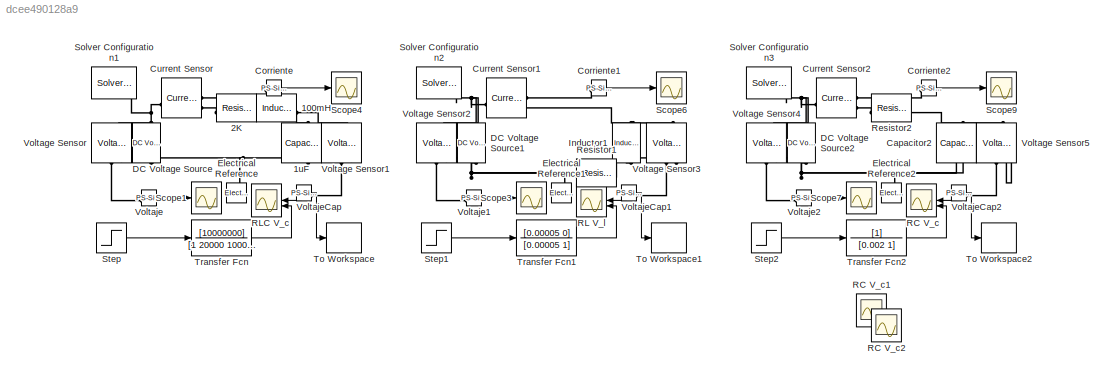
MODEL slx_dcee490128a9
KIND model
CONFIG AbsTol = 1e-3
CONFIG EnableMultiTasking = off
CONFIG FixedStep = auto
CONFIG MaxStep = auto
CONFIG MinStep = auto
CONFIG RelTol = 1e-3
CONFIG SampleTimeConstraint = Unconstrained
CONFIG SolverName = VariableStepAuto
CONFIG StartTime = 0.0
CONFIG StopTime = 100
BLOCK [Reference] 100mH  REF=fl_lib/Electrical/Electrical Elements/Inductor
  SourceBlock = fl_lib/Electrical/Electrical Elements/Inductor
  SourceType = Inductor
BLOCK [Reference] 1uF  REF=fl_lib/Electrical/Electrical Elements/Capacitor
  NameLocation = left
  SourceBlock = fl_lib/Electrical/Electrical Elements/Capacitor
  SourceType = Capacitor
BLOCK [Reference] 2K  REF=fl_lib/Electrical/Electrical Elements/Resistor
  SourceBlock = fl_lib/Electrical/Electrical Elements/Resistor
  SourceType = Resistor
BLOCK [Reference] Capacitor2  REF=fl_lib/Electrical/Electrical Elements/Capacitor
  NameLocation = left
  SourceBlock = fl_lib/Electrical/Electrical Elements/Capacitor
  SourceType = Capacitor
BLOCK [Reference] Corriente  REF=nesl_utility/PS-Simulink
Converter
  SourceBlock = nesl_utility/PS-Simulink\nConverter
  SourceType = PS-Simulink\nConverter
BLOCK [Reference] Corriente1  REF=nesl_utility/PS-Simulink
Converter
  SourceBlock = nesl_utility/PS-Simulink\nConverter
  SourceType = PS-Simulink\nConverter
BLOCK [Reference] Corriente2  REF=nesl_utility/PS-Simulink
Converter
  SourceBlock = nesl_utility/PS-Simulink\nConverter
  SourceType = PS-Simulink\nConverter
BLOCK [Reference] Current Sensor  REF=fl_lib/Electrical/Electrical Sensors/Current Sensor
  SourceBlock = fl_lib/Electrical/Electrical Sensors/Current Sensor
  SourceType = Current Sensor
BLOCK [Reference] Current Sensor1  REF=fl_lib/Electrical/Electrical Sensors/Current Sensor
  SourceBlock = fl_lib/Electrical/Electrical Sensors/Current Sensor
  SourceType = Current Sensor
BLOCK [Reference] Current Sensor2  REF=fl_lib/Electrical/Electrical Sensors/Current Sensor
  SourceBlock = fl_lib/Electrical/Electrical Sensors/Current Sensor
  SourceType = Current Sensor
BLOCK [Reference] DC Voltage Source  REF=fl_lib/Electrical/Electrical Sources/DC Voltage Source
  NameLocation = right
  SourceBlock = fl_lib/Electrical/Electrical Sources/DC Voltage Source
  SourceType = DC Voltage Source
BLOCK [Reference] DC Voltage Source1  REF=fl_lib/Electrical/Electrical Sources/DC Voltage Source
  NameLocation = right
  SourceBlock = fl_lib/Electrical/Electrical Sources/DC Voltage Source
  SourceType = DC Voltage Source
BLOCK [Reference] DC Voltage Source2  REF=fl_lib/Electrical/Electrical Sources/DC Voltage Source
  NameLocation = right
  SourceBlock = fl_lib/Electrical/Electrical Sources/DC Voltage Source
  SourceType = DC Voltage Source
BLOCK [Reference] Electrical Reference  REF=fl_lib/Electrical/Electrical Elements/Electrical Reference
  NameLocation = right
  SourceBlock = fl_lib/Electrical/Electrical Elements/Electrical Reference
  SourceType = Electrical Reference
BLOCK [Reference] Electrical Reference1  REF=fl_lib/Electrical/Electrical Elements/Electrical Reference
  NameLocation = right
  SourceBlock = fl_lib/Electrical/Electrical Elements/Electrical Reference
  SourceType = Electrical Reference
BLOCK [Reference] Electrical Reference2  REF=fl_lib/Electrical/Electrical Elements/Electrical Reference
  NameLocation = right
  SourceBlock = fl_lib/Electrical/Electrical Elements/Electrical Reference
  SourceType = Electrical Reference
BLOCK [Reference] Inductor1  REF=fl_lib/Electrical/Electrical Elements/Inductor
  NameLocation = left
  SourceBlock = fl_lib/Electrical/Electrical Elements/Inductor
  SourceType = Inductor
BLOCK [Scope] RC V_c
  ActiveDisplayYMaximum = 4.9731070631350631
  ActiveDisplayYMinimum = -0.060650049082751956
  ContainerLayout = {"WindowBounds":[1,1529,1395,600],"gridDimensions":{"w":1,"h":1},"tileCount":1,"tileCoverage":1,"columnWeights":1,"rowWeights":1,"tileOccupancy":{"children":[{"id":"/Scope8"},{"id":"/Scope5"}]}}  <repeated x4 — deduplicated; at blocks: RC V_c, RC V_c1, RC V_c2, RL V_l>
  DataLoggingVariableName = ScopeData6
  Floating = off
  GraphicalSettings = {"Style":{"BackgroundColor":[0.12941176470588237,0.12941176470588237,0.12941176470588237],"AxesColor":[0.07058823529411765,0.07058823529411765,0.07058823529411765],"LabelsColor":[0.8509803921568627,0.8509803921568627,0.8509803921568627],"PreserveColors":false,"Visible":[true,true],"LineStyle":["-",":"],"LineWidth":[3,3],"BarWidth":[0.9,0.9],"LineColor":["auto","auto"],"LineFaceAlpha":[1,1],"LineEd...<+2251ch>
  MultipleDisplayCache = [{"MaxYLimMag":5.6308250579011947,"MaxYLimReal":4.9731070631350631,"MinYLimMag":0,"MinYLimReal":-0.060650049082751956,"PlotAsMagnitudePhase":false,"ShowGrid":true,"ShowLegend":true,"Title":"Funcion de transferencia vs Salida del circuito","YLabel":"Voltaje"}]  <repeated x3 — deduplicated; at blocks: RC V_c, RC V_c2, RLC V_c>
  NumInputPorts = 2
  OpenAtSimulationStart = on
  ScopeFrameLocation = container
  ShowLegend = on
  ShowTimeAxisLabel = on
  Title = Funcion de transferencia vs Salida del circuito
  Visible = on
  WasSavedAsWebScope = on
  WindowPosition = [0 36 1536 793]
  YLabel = Voltaje
BLOCK [Scope] RC V_c1
  ActiveDisplayYMaximum = 7.3529253989415817E-7
  ActiveDisplayYMinimum = -3.53916868983982E-7
  DataLoggingVariableName = ScopeData8
  DisplayFullPath = on
  Floating = off
  GraphicalSettings = {"AxesScalingProperties":{"AlignXAxis":"Center","AlignYAxis":"Center","AutoScaleXAxisLimits":false,"AxesScaling":"Manual","AxesScalingNumUpdates":10,"ExpandOnly":true,"ScaleAxesLimitsAtStop":false,"XAxisDataRange":100,"YAxisDataRange":80},"DisplayProperties":{"ColorOrder":["auto","auto","auto","auto","auto","auto","auto","auto","auto","auto","auto","auto","auto","auto","auto","auto","auto","auto",...<+2250ch>
  MultipleDisplayCache = [{"MaxYLimMag":5.6308250579011947,"MaxYLimReal":7.3529253989415817E-7,"MinYLimMag":0,"MinYLimReal":-3.53916868983982E-7,"PlotAsMagnitudePhase":false,"ShowGrid":true,"ShowLegend":true,"Title":"Funcion de transferencia vs Salida del circuito","YLabel":"Voltaje"}]
  NumInputPorts = 2
  OpenAtSimulationStart = on
  ScopeFrameLocation = container
  ShowLegend = on
  ShowTimeAxisLabel = on
  Title = Funcion de transferencia vs Salida del circuito
  Visible = on
  WasSavedAsWebScope = on
  WindowPosition = [0 36 1536 793]
  YLabel = Voltaje
BLOCK [Scope] RC V_c2
  ActiveDisplayYMaximum = 4.9731070631350631
  ActiveDisplayYMinimum = -0.060650049082751956
  DataLoggingVariableName = ScopeData9
  Floating = off
  GraphicalSettings = {"Style":{"BackgroundColor":[0.12941176470588237,0.12941176470588237,0.12941176470588237],"AxesColor":[0.07058823529411765,0.07058823529411765,0.07058823529411765],"LabelsColor":[0.8509803921568627,0.8509803921568627,0.8509803921568627],"PreserveColors":false,"Visible":[true,true],"LineStyle":["-",":"],"LineWidth":[3,3],"BarWidth":[0.9,0.9],"LineColor":["auto","auto"],"LineFaceAlpha":[1,1],"LineEd...<+2239ch>
  NumInputPorts = 2
  OpenAtSimulationStart = on
  ScopeFrameLocation = container
  ShowLegend = on
  ShowTimeAxisLabel = on
  Title = Funcion de transferencia vs Salida del circuito
  Visible = on
  WasSavedAsWebScope = on
  WindowPosition = [0 36 1536 793]
  YLabel = Voltaje
BLOCK [Scope] RL V_l
  ActiveDisplayYMaximum = 7.4489023708659783
  ActiveDisplayYMinimum = -0.65199075700163123
  DataLoggingVariableName = ScopeData3
  Floating = off
  GraphicalSettings = {"Style":{"BackgroundColor":[0.12941176470588237,0.12941176470588237,0.12941176470588237],"AxesColor":[0.07058823529411765,0.07058823529411765,0.07058823529411765],"LabelsColor":[0.8509803921568627,0.8509803921568627,0.8509803921568627],"PreserveColors":false,"Visible":[true,false],"LineStyle":["-",":"],"LineWidth":[3,3],"BarWidth":[0.9,0.9],"LineColor":["auto","auto"],"LineFaceAlpha":[1,1],"LineE...<+2545ch>
  MultipleDisplayCache = [{"MaxYLimMag":5.625122285105399,"MaxYLimReal":7.4489023708659783,"MinYLimMag":0,"MinYLimReal":-0.65199075700163123,"PlotAsMagnitudePhase":false,"ShowGrid":true,"ShowLegend":true,"Title":"Funcion de transferencia vs Salida del circuito","YLabel":"Voltaje"}]
  NumInputPorts = 2
  OpenAtSimulationStart = on
  ScopeFrameLocation = container
  ShowLegend = on
  ShowTimeAxisLabel = on
  Title = Funcion de transferencia vs Salida del circuito
  Visible = on
  WasSavedAsWebScope = on
  WindowPosition = [1 49 1536 793]
  YLabel = Voltaje
BLOCK [Scope] RLC V_c
  ActiveDisplayYMaximum = 4.9731070631350631
  ActiveDisplayYMinimum = -0.060650049082751956
  ContainerLayout = {"WindowBounds":[1,1529,1395,600],"gridDimensions":{"w":1,"h":1},"tileCount":1,"tileCoverage":1,"columnWeights":1,"rowWeights":1,"tileOccupancy":{"children":[{"id":"/Scope8"},{"id":"/Scope2"},{"id":"/Scope5"},{"id":"/Scope4"},{"id":"/Scope6"},{"id":"/Scope9"}]}}  <repeated x4 — deduplicated; at blocks: RLC V_c, Scope4, Scope6, Scope9>
  DataLoggingVariableName = ScopeData2
  Floating = off
  GraphicalSettings = {"Style":{"BackgroundColor":[0.12941176470588237,0.12941176470588237,0.12941176470588237],"AxesColor":[0.07058823529411765,0.07058823529411765,0.07058823529411765],"LabelsColor":[0.8509803921568627,0.8509803921568627,0.8509803921568627],"PreserveColors":false,"Visible":[true,true],"LineStyle":["-",":"],"LineWidth":[3,3],"BarWidth":[0.9,0.9],"LineColor":["auto","auto"],"LineFaceAlpha":[1,1],"LineEd...<+2249ch>
  LayoutDimensionsString = [1,1]
  NumInputPorts = 2
  OpenAtSimulationStart = on
  ScopeFrameLocation = container
  ShowLegend = on
  ShowTimeAxisLabel = on
  Title = Funcion de transferencia vs Salida del circuito
  Visible = on
  WasSavedAsWebScope = on
  WindowPosition = [1 49 1536 793]
  YLabel = Voltaje
BLOCK [Reference] Resistor1  REF=fl_lib/Electrical/Electrical Elements/Resistor
  SourceBlock = fl_lib/Electrical/Electrical Elements/Resistor
  SourceType = Resistor
BLOCK [Reference] Resistor2  REF=fl_lib/Electrical/Electrical Elements/Resistor
  SourceBlock = fl_lib/Electrical/Electrical Elements/Resistor
  SourceType = Resistor
BLOCK [Scope] Scope1
  ActiveDisplayYMaximum = 6
  ActiveDisplayYMinimum = 4
  ContainerLayout = {"WindowBounds":[1,1529,1395,600]}
  DataLoggingVariableName = ScopeData1
  Floating = off
  GraphicalSettings = {"Style":{"BackgroundColor":[0.12941176470588237,0.12941176470588237,0.12941176470588237],"AxesColor":[0.07058823529411765,0.07058823529411765,0.07058823529411765],"LabelsColor":[0.8509803921568627,0.8509803921568627,0.8509803921568627],"PreserveColors":false,"Visible":[true],"LineStyle":["-"],"LineWidth":[1.5],"BarWidth":[0.9],"LineColor":["auto"],"LineFaceAlpha":[1],"LineEdgeAlpha":[1],"Marker":...<+1941ch>  <repeated x3 — deduplicated; at blocks: Scope1, Scope3, Scope7>
  MultipleDisplayCache = [{"MaxYLimMag":6,"MaxYLimReal":6,"MinYLimMag":4,"MinYLimReal":4,"PlotAsMagnitudePhase":false,"ShowGrid":true,"ShowLegend":true,"Title":"Grafica de voltaje.","YLabel":"Voltaje"}]  <repeated x3 — deduplicated; at blocks: Scope1, Scope3, Scope7>
  NumInputPorts = 1
  ShowLegend = on
  ShowTimeAxisLabel = on
  TimeAxisLabels = All
  Title = Grafica de voltaje.
  WasSavedAsWebScope = on
  WindowPosition = [680 330 560 447]
  YLabel = Voltaje
BLOCK [Scope] Scope3
  ActiveDisplayYMaximum = 6
  ActiveDisplayYMinimum = 4
  ContainerLayout = {"WindowBounds":[2,1533,339,596],"gridDimensions":{"w":1,"h":1},"tileCount":1,"tileCoverage":1,"columnWeights":1,"rowWeights":1,"tileOccupancy":{"children":[{"id":"/Scope4"},{"id":"/Scope1"},{"id":"/Scope2"}]}}
  Floating = off
  NumInputPorts = 1
  ShowLegend = on
  ShowTimeAxisLabel = on
  TimeAxisLabels = All
  Title = Grafica de voltaje.
  WasSavedAsWebScope = on
  WindowPosition = [680 330 560 447]
  YLabel = Voltaje
BLOCK [Scope] Scope4
  ActiveDisplayYMaximum = 0.0034772686897663217
  ActiveDisplayYMinimum = -0.0019993928048791867
  DataLoggingVariableName = ScopeData1
  DisplayFullPath = on
  Floating = off
  GraphicalSettings = {"Style":{"BackgroundColor":[0.12941176470588237,0.12941176470588237,0.12941176470588237],"AxesColor":[0.07058823529411765,0.07058823529411765,0.07058823529411765],"LabelsColor":[0.8509803921568627,0.8509803921568627,0.8509803921568627],"PreserveColors":false,"Visible":[true],"LineStyle":["-"],"LineWidth":[1.5],"BarWidth":[0.9],"LineColor":["auto"],"LineFaceAlpha":[1],"LineEdgeAlpha":[1],"Marker":...<+2013ch>
  MaximizeAxes = Auto
  MultipleDisplayCache = [{"MaxYLimMag":10,"MaxYLimReal":0.0034772686897663217,"MinYLimMag":0,"MinYLimReal":-0.0019993928048791867,"PlotAsMagnitudePhase":false,"ShowGrid":true,"ShowLegend":true,"Title":"Grafica de corriente","YLabel":"Intensidad"}]
  NumInputPorts = 1
  ScopeFrameLocation = window
  ShowLegend = on
  ShowTimeAxisLabel = on
  Title = Grafica de corriente
  WasSavedAsWebScope = on
  WindowPosition = [448.000000,113.000000,958.000000,457.000000,]
  YLabel = Intensidad
BLOCK [Scope] Scope6
  ActiveDisplayYMaximum = 0.0034772686897663217
  ActiveDisplayYMinimum = -0.0019993928048791867
  DataLoggingVariableName = ScopeData4
  DisplayFullPath = on
  Floating = off
  GraphicalSettings = {"Style":{"BackgroundColor":[0.12941176470588237,0.12941176470588237,0.12941176470588237],"AxesColor":[0.07058823529411765,0.07058823529411765,0.07058823529411765],"LabelsColor":[0.8509803921568627,0.8509803921568627,0.8509803921568627],"PreserveColors":false,"Visible":[true],"LineStyle":["-"],"LineWidth":[1.5],"BarWidth":[0.9],"LineColor":["auto"],"LineFaceAlpha":[1],"LineEdgeAlpha":[1],"Marker":...<+2015ch>
  MaximizeAxes = Auto
  MultipleDisplayCache = [{"MaxYLimMag":10,"MaxYLimReal":0.0034772686897663217,"MinYLimMag":0,"MinYLimReal":-0.0019993928048791867,"PlotAsMagnitudePhase":false,"ShowGrid":true,"ShowLegend":true,"Title":"Grafica de corriente","YLabel":"Intensidad"}]
  NumInputPorts = 1
  ScopeFrameLocation = window
  ShowLegend = on
  ShowTimeAxisLabel = on
  Title = Grafica de corriente
  WasSavedAsWebScope = on
  WindowPosition = [479.000000,90.000000,958.000000,457.000000,]
  YLabel = Intensidad
BLOCK [Scope] Scope7
  ActiveDisplayYMaximum = 6
  ActiveDisplayYMinimum = 4
  ContainerLayout = {"WindowBounds":[2,1533,339,596],"gridDimensions":{"w":1,"h":1},"tileCount":1,"tileCoverage":1,"columnWeights":1,"rowWeights":1,"tileOccupancy":{"children":[{"id":"/Scope4"},{"id":"/Scope1"},{"id":"/Scope2"}]}}
  DataLoggingVariableName = ScopeData5
  Floating = off
  NumInputPorts = 1
  ShowLegend = on
  ShowTimeAxisLabel = on
  TimeAxisLabels = All
  Title = Grafica de voltaje.
  WasSavedAsWebScope = on
  WindowPosition = [680 330 560 447]
  YLabel = Voltaje
BLOCK [Scope] Scope9
  ActiveDisplayYMaximum = 0.0028103954050093891
  ActiveDisplayYMinimum = -0.00029355865758450358
  DataLoggingVariableName = ScopeData7
  DisplayFullPath = on
  Floating = off
  GraphicalSettings = {"Style":{"BackgroundColor":[0.12941176470588237,0.12941176470588237,0.12941176470588237],"AxesColor":[0.07058823529411765,0.07058823529411765,0.07058823529411765],"LabelsColor":[0.8509803921568627,0.8509803921568627,0.8509803921568627],"PreserveColors":false,"Visible":[true],"LineStyle":["-"],"LineWidth":[1.5],"BarWidth":[0.9],"LineColor":["auto"],"LineFaceAlpha":[1],"LineEdgeAlpha":[1],"Marker":...<+2013ch>
  MaximizeAxes = Auto
  MultipleDisplayCache = [{"MaxYLimMag":10,"MaxYLimReal":0.0028103954050093891,"MinYLimMag":0,"MinYLimReal":-0.00029355865758450358,"PlotAsMagnitudePhase":false,"ShowGrid":true,"ShowLegend":true,"Title":"Grafica de corriente","YLabel":"Intensidad"}]
  NumInputPorts = 1
  ScopeFrameLocation = window
  ShowLegend = on
  ShowTimeAxisLabel = on
  Title = Grafica de corriente
  WasSavedAsWebScope = on
  WindowPosition = [1.000000,49.000000,1536.000000,793.000000,]
  YLabel = Intensidad
BLOCK [Reference] Solver Configuration1  REF=nesl_utility/Solver
Configuration
  SourceBlock = nesl_utility/Solver\nConfiguration
  SourceType = Solver\nConfiguration
BLOCK [Reference] Solver Configuration2  REF=nesl_utility/Solver
Configuration
  SourceBlock = nesl_utility/Solver\nConfiguration
  SourceType = Solver\nConfiguration
BLOCK [Reference] Solver Configuration3  REF=nesl_utility/Solver
Configuration
  SourceBlock = nesl_utility/Solver\nConfiguration
  SourceType = Solver\nConfiguration
BLOCK [Step] Step
  After = 5
  SampleTime = 0
  Time = 0
BLOCK [Step] Step1
  After = 5
  SampleTime = 0
  Time = 0
BLOCK [Step] Step2
  After = 5
  SampleTime = 0
  Time = 0
BLOCK [ToWorkspace] To Workspace
  FixptAsFi = on
  MaxDataPoints = inf
  SampleTime = -1
  SaveFormat = Timeseries
  VariableName = vcRLC
BLOCK [ToWorkspace] To Workspace1
  FixptAsFi = on
  MaxDataPoints = inf
  SampleTime = -1
  SaveFormat = Timeseries
  VariableName = vlRL
BLOCK [ToWorkspace] To Workspace2
  FixptAsFi = on
  MaxDataPoints = inf
  SampleTime = -1
  SaveFormat = Timeseries
  VariableName = vcRC
BLOCK [TransferFcn] Transfer Fcn
  Denominator = [1 20000 10000000]
  Numerator = [10000000]
BLOCK [TransferFcn] Transfer Fcn1
  Denominator = [0.00005 1]
  Numerator = [0.00005 0]
BLOCK [TransferFcn] Transfer Fcn2
  Denominator = [0.002 1]
BLOCK [Reference] Voltage Sensor  REF=fl_lib/Electrical/Electrical Sensors/Voltage Sensor
  NameLocation = right
  SourceBlock = fl_lib/Electrical/Electrical Sensors/Voltage Sensor
  SourceType = Voltage Sensor
BLOCK [Reference] Voltage Sensor1  REF=fl_lib/Electrical/Electrical Sensors/Voltage Sensor
  NameLocation = right
  SourceBlock = fl_lib/Electrical/Electrical Sensors/Voltage Sensor
  SourceType = Voltage Sensor
BLOCK [Reference] Voltage Sensor2  REF=fl_lib/Electrical/Electrical Sensors/Voltage Sensor
  NameLocation = right
  SourceBlock = fl_lib/Electrical/Electrical Sensors/Voltage Sensor
  SourceType = Voltage Sensor
BLOCK [Reference] Voltage Sensor3  REF=fl_lib/Electrical/Electrical Sensors/Voltage Sensor
  NameLocation = right
  SourceBlock = fl_lib/Electrical/Electrical Sensors/Voltage Sensor
  SourceType = Voltage Sensor
BLOCK [Reference] Voltage Sensor4  REF=fl_lib/Electrical/Electrical Sensors/Voltage Sensor
  NameLocation = right
  SourceBlock = fl_lib/Electrical/Electrical Sensors/Voltage Sensor
  SourceType = Voltage Sensor
BLOCK [Reference] Voltage Sensor5  REF=fl_lib/Electrical/Electrical Sensors/Voltage Sensor
  NameLocation = right
  SourceBlock = fl_lib/Electrical/Electrical Sensors/Voltage Sensor
  SourceType = Voltage Sensor
BLOCK [Reference] Voltaje  REF=nesl_utility/PS-Simulink
Converter
  SourceBlock = nesl_utility/PS-Simulink\nConverter
  SourceType = PS-Simulink\nConverter
BLOCK [Reference] Voltaje1  REF=nesl_utility/PS-Simulink
Converter
  SourceBlock = nesl_utility/PS-Simulink\nConverter
  SourceType = PS-Simulink\nConverter
BLOCK [Reference] Voltaje2  REF=nesl_utility/PS-Simulink
Converter
  SourceBlock = nesl_utility/PS-Simulink\nConverter
  SourceType = PS-Simulink\nConverter
BLOCK [Reference] VoltajeCap  REF=nesl_utility/PS-Simulink
Converter
  NameLocation = top
  SourceBlock = nesl_utility/PS-Simulink\nConverter
  SourceType = PS-Simulink\nConverter
BLOCK [Reference] VoltajeCap1  REF=nesl_utility/PS-Simulink
Converter
  NameLocation = top
  SourceBlock = nesl_utility/PS-Simulink\nConverter
  SourceType = PS-Simulink\nConverter
BLOCK [Reference] VoltajeCap2  REF=nesl_utility/PS-Simulink
Converter
  NameLocation = top
  SourceBlock = nesl_utility/PS-Simulink\nConverter
  SourceType = PS-Simulink\nConverter
LINE Corriente1:1 -> Scope6:1
LINE Corriente2:1 -> Scope9:1
LINE Corriente:1 -> Scope4:1
LINE Step1:1 -> Transfer Fcn1:1
LINE Step2:1 -> Transfer Fcn2:1
LINE Step:1 -> Transfer Fcn:1
LINE Transfer Fcn1:1 -> RL V_l:2
LINE Transfer Fcn2:1 -> RC V_c:2
LINE Transfer Fcn:1 -> RLC V_c:2
LINE Voltaje1:1 -> Scope3:1
LINE Voltaje2:1 -> Scope7:1
LINE Voltaje:1 -> Scope1:1
NET VoltajeCap1:1 -> RL V_l:1, To Workspace1:1
NET VoltajeCap2:1 -> RC V_c:1, To Workspace2:1
NET VoltajeCap:1 -> RLC V_c:1, To Workspace:1
PLINE 100mH:LConn1 -- 2K:RConn1
PNET net1: 100mH:RConn1 -- 1uF:LConn1 -- Voltage Sensor1:LConn1
PNET net2: 1uF:RConn1 -- DC Voltage Source:RConn1 -- Electrical Reference:LConn1 -- Voltage Sensor1:RConn2 -- Voltage Sensor:RConn2
PLINE 2K:LConn1 -- Current Sensor:RConn2
PNET net3: Capacitor2:LConn1 -- Resistor2:RConn1 -- Voltage Sensor5:LConn1
PNET net4: Capacitor2:RConn1 -- DC Voltage Source2:RConn1 -- Electrical Reference2:LConn1 -- Voltage Sensor4:RConn2 -- Voltage Sensor5:RConn2
PLINE Corriente1:LConn1 -- Current Sensor1:RConn1
PLINE Corriente2:LConn1 -- Current Sensor2:RConn1
PLINE Corriente:LConn1 -- Current Sensor:RConn1
PNET net5: Current Sensor1:LConn1 -- DC Voltage Source1:LConn1 -- Solver Configuration2:RConn1 -- Voltage Sensor2:LConn1
PNET net6: Current Sensor1:RConn2 -- Inductor1:LConn1 -- Voltage Sensor3:LConn1
PNET net7: Current Sensor2:LConn1 -- DC Voltage Source2:LConn1 -- Solver Configuration3:RConn1 -- Voltage Sensor4:LConn1
PLINE Current Sensor2:RConn2 -- Resistor2:LConn1
PNET net8: Current Sensor:LConn1 -- DC Voltage Source:LConn1 -- Solver Configuration1:RConn1 -- Voltage Sensor:LConn1
PNET net9: DC Voltage Source1:RConn1 -- Electrical Reference1:LConn1 -- Resistor1:LConn1 -- Voltage Sensor2:RConn2
PNET net10: Inductor1:RConn1 -- Resistor1:RConn1 -- Voltage Sensor3:RConn2
PLINE Voltage Sensor1:RConn1 -- VoltajeCap:LConn1
PLINE Voltage Sensor2:RConn1 -- Voltaje1:LConn1
PLINE Voltage Sensor3:RConn1 -- VoltajeCap1:LConn1
PLINE Voltage Sensor4:RConn1 -- Voltaje2:LConn1
PLINE Voltage Sensor5:RConn1 -- VoltajeCap2:LConn1
PLINE Voltage Sensor:RConn1 -- Voltaje:LConn1
note: NET lines group one-source signal fan-out (src -> all destinations, sorted); 1:1 wires keep LINE; PNET lines group multi-terminal physical nets as a canonical sorted terminal list (undirected conserving connections); 2-terminal nets keep the pairwise PLINE form
